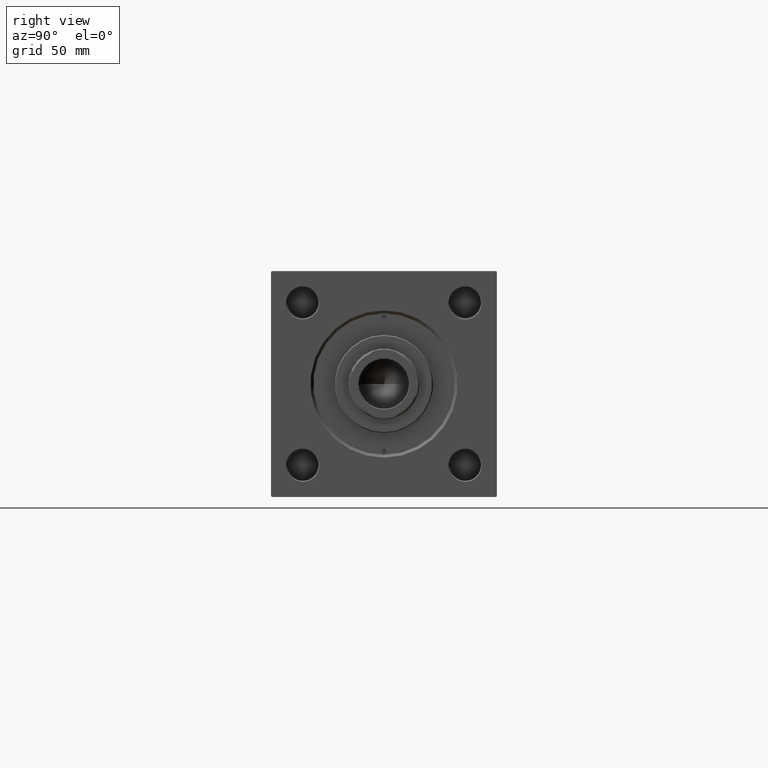
[diagram: clean part render]
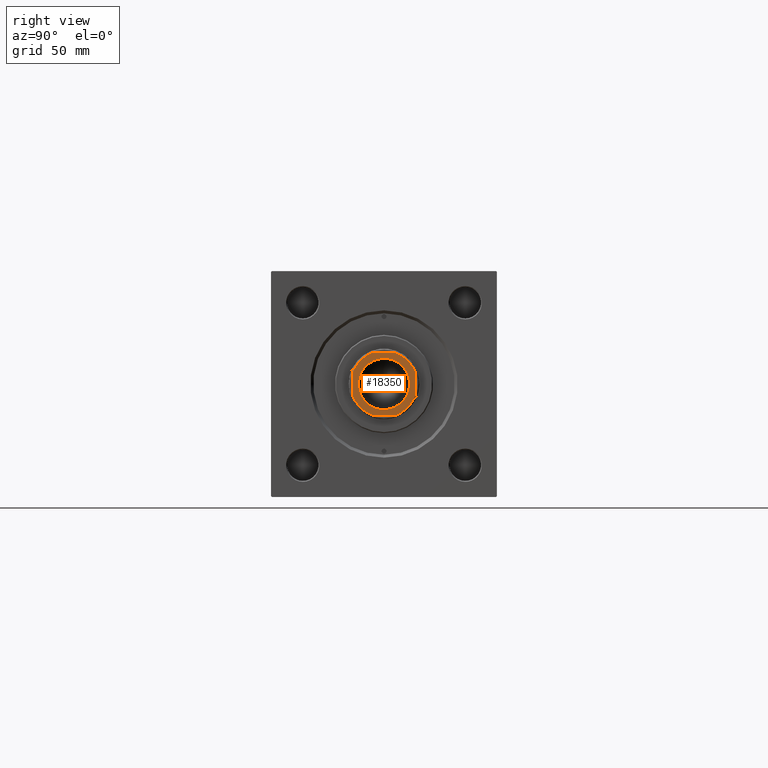
[diagram: same view with one face highlighted and labeled with its STEP entity id]
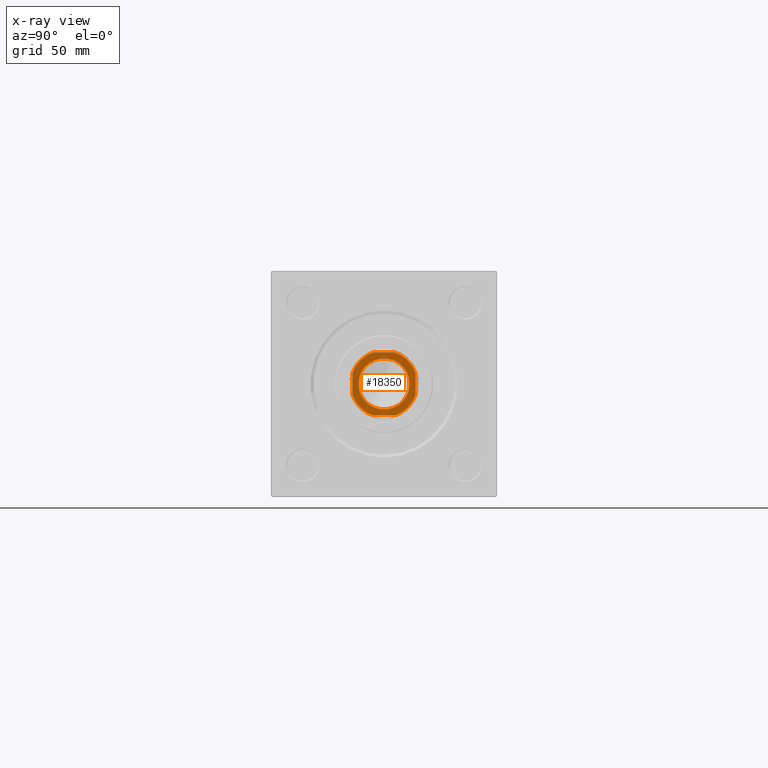
[diagram: x-ray of the same camera — body ghosted, the highlighted face saturated]
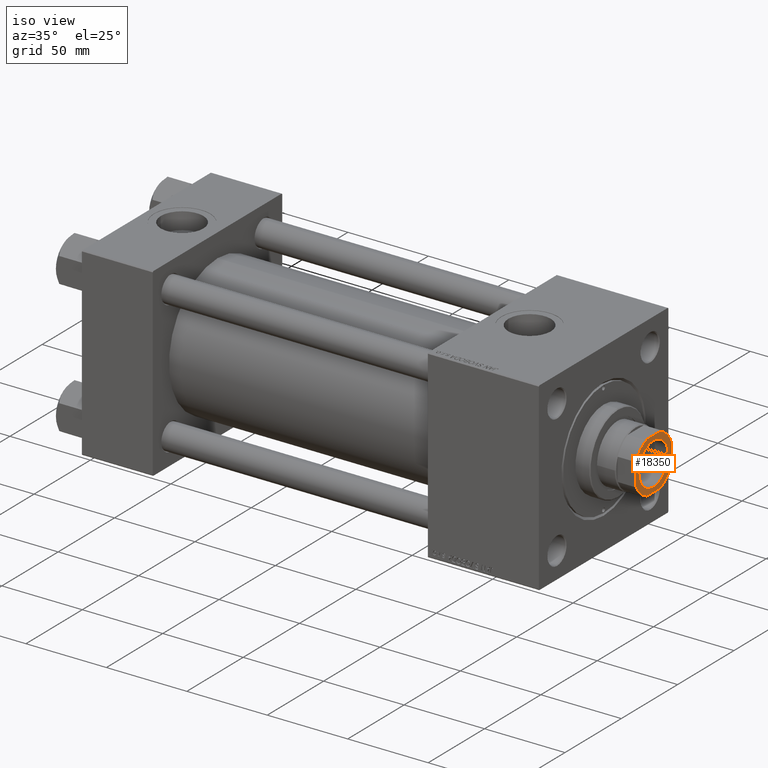
[diagram: same view with one face highlighted and labeled with its STEP entity id]
A machine part, right view. The second image highlights one B-rep face of the part: STEP entity #18350.
The next image is the same camera in x-ray: the body ghosted, the highlighted face saturated — about 0% of this face is hidden behind the body in this view.
A second angle (iso view) of the same face is appended — the face is thin or edge-on in the first view.
In plain terms, the highlighted planar face has unit normal (1, 0, 0).
Its self-contained STEP definition (entity closure, byte-faithful):
#176 = CIRCLE ( 'NONE', #38732, 17.00000000000001776 ) ;
#1398 = CARTESIAN_POINT ( 'NONE',  ( -5.744562646538206252, -15.99999999999999645, 271.0000000000000000 ) ) ;
#2155 = CARTESIAN_POINT ( 'NONE',  ( 5.744562646538206252, -15.99999999999999645, 271.0000000000000000 ) ) ;
#2888 = AXIS2_PLACEMENT_3D ( 'NONE', #47066, #4143, #43216 ) ;
#2972 = CIRCLE ( 'NONE', #30040, 17.00000000000005684 ) ;
#3873 = CARTESIAN_POINT ( 'NONE',  ( -16.00000000000000000, 16.00000000000000000, 271.0000000000000000 ) ) ;
#4143 = DIRECTION ( 'NONE',  ( 0.000000000000000000, -0.000000000000000000, -1.000000000000000000 ) ) ;
#5320 = VERTEX_POINT ( 'NONE', #48011 ) ;
#5378 = DIRECTION ( 'NONE',  ( 1.000000000000000000, 0.000000000000000000, 0.000000000000000000 ) ) ;
#5950 = DIRECTION ( 'NONE',  ( -0.000000000000000000, 0.000000000000000000, 1.000000000000000000 ) ) ;
#5990 = EDGE_LOOP ( 'NONE', ( #8282, #15977, #37212, #45484, #50147, #12613, #46513, #47067 ) ) ;
#6260 = AXIS2_PLACEMENT_3D ( 'NONE', #21850, #26720, #13191 ) ;
#6431 = CARTESIAN_POINT ( 'NONE',  ( 16.00000000000000000, 5.744562646538086348, 271.0000000000000000 ) ) ;
#6494 = CIRCLE ( 'NONE', #7300, 17.00000000000005684 ) ;
#7300 = AXIS2_PLACEMENT_3D ( 'NONE', #33076, #40555, #21011 ) ;
#8282 = ORIENTED_EDGE ( 'NONE', *, *, #47948, .T. ) ;
#8856 = ORIENTED_EDGE ( 'NONE', *, *, #24100, .T. ) ;
#9589 = VERTEX_POINT ( 'NONE', #45581 ) ;
#10588 = EDGE_CURVE ( 'NONE', #44794, #36478, #44526, .T. ) ;
#10595 = EDGE_CURVE ( 'NONE', #20973, #35851, #43765, .T. ) ;
#10633 = LINE ( 'NONE', #41749, #41355 ) ;
#11522 = EDGE_CURVE ( 'NONE', #9589, #31728, #25844, .T. ) ;
#12613 = ORIENTED_EDGE ( 'NONE', *, *, #32802, .T. ) ;
#13111 = VERTEX_POINT ( 'NONE', #36753 ) ;
#13191 = DIRECTION ( 'NONE',  ( 1.000000000000000000, 0.000000000000000000, 0.000000000000000000 ) ) ;
#14885 = PLANE ( 'NONE',  #6260 ) ;
#15977 = ORIENTED_EDGE ( 'NONE', *, *, #43438, .T. ) ;
#16077 = AXIS2_PLACEMENT_3D ( 'NONE', #49338, #31835, #19257 ) ;
#16168 = DIRECTION ( 'NONE',  ( 0.000000000000000000, -0.000000000000000000, -1.000000000000000000 ) ) ;
#18350 = ADVANCED_FACE ( 'NONE', ( #36587, #41405 ), #14885, .T. ) ;
#18359 = VERTEX_POINT ( 'NONE', #6431 ) ;
#18417 = EDGE_CURVE ( 'NONE', #35851, #47768, #35790, .T. ) ;
#19243 = VECTOR ( 'NONE', #20377, 1000.000000000000000 ) ;
#19257 = DIRECTION ( 'NONE',  ( 1.000000000000000000, 0.000000000000000000, 0.000000000000000000 ) ) ;
#20377 = DIRECTION ( 'NONE',  ( 0.000000000000000000, -1.000000000000000000, 0.000000000000000000 ) ) ;
#20973 = VERTEX_POINT ( 'NONE', #1398 ) ;
#21011 = DIRECTION ( 'NONE',  ( 1.000000000000000000, 0.000000000000000000, 0.000000000000000000 ) ) ;
#21623 = DIRECTION ( 'NONE',  ( 1.000000000000000000, 0.000000000000000000, 0.000000000000000000 ) ) ;
#21850 = CARTESIAN_POINT ( 'NONE',  ( 0.000000000000000000, 0.000000000000000000, 271.0000000000000000 ) ) ;
#22540 = VECTOR ( 'NONE', #40681, 1000.000000000000000 ) ;
#23406 = DIRECTION ( 'NONE',  ( -1.000000000000000000, -0.000000000000000000, -0.000000000000000000 ) ) ;
#23451 = CIRCLE ( 'NONE', #26745, 13.05000000000000604 ) ;
#24100 = EDGE_CURVE ( 'NONE', #31728, #9589, #23451, .T. ) ;
#25262 = EDGE_CURVE ( 'NONE', #5320, #44794, #2972, .T. ) ;
#25844 = CIRCLE ( 'NONE', #2888, 13.05000000000000604 ) ;
#25850 = ORIENTED_EDGE ( 'NONE', *, *, #11522, .T. ) ;
#26720 = DIRECTION ( 'NONE',  ( -0.000000000000000000, 0.000000000000000000, 1.000000000000000000 ) ) ;
#26745 = AXIS2_PLACEMENT_3D ( 'NONE', #40095, #16168, #5378 ) ;
#27365 = CARTESIAN_POINT ( 'NONE',  ( -16.00000000000000000, -5.744562646538198258, 271.0000000000000000 ) ) ;
#28340 = CARTESIAN_POINT ( 'NONE',  ( -16.00000000000000000, 16.00000000000000000, 271.0000000000000000 ) ) ;
#30040 = AXIS2_PLACEMENT_3D ( 'NONE', #33442, #5950, #21623 ) ;
#30162 = DIRECTION ( 'NONE',  ( -1.084202172485504434E-16, 1.000000000000000000, -0.000000000000000000 ) ) ;
#31728 = VERTEX_POINT ( 'NONE', #48046 ) ;
#31835 = DIRECTION ( 'NONE',  ( -0.000000000000000000, 0.000000000000000000, 1.000000000000000000 ) ) ;
#32802 = EDGE_CURVE ( 'NONE', #36478, #20973, #6494, .T. ) ;
#33014 = DIRECTION ( 'NONE',  ( 1.000000000000000000, 0.000000000000000000, 0.000000000000000000 ) ) ;
#33073 = VECTOR ( 'NONE', #23406, 1000.000000000000000 ) ;
#33076 = CARTESIAN_POINT ( 'NONE',  ( 0.000000000000000000, 0.000000000000000000, 271.0000000000000000 ) ) ;
#33442 = CARTESIAN_POINT ( 'NONE',  ( 0.000000000000000000, 0.000000000000000000, 271.0000000000000000 ) ) ;
#35233 = LINE ( 'NONE', #3873, #33073 ) ;
#35790 = CIRCLE ( 'NONE', #16077, 17.00000000000005684 ) ;
#35851 = VERTEX_POINT ( 'NONE', #2155 ) ;
#36478 = VERTEX_POINT ( 'NONE', #27365 ) ;
#36587 = FACE_BOUND ( 'NONE', #36641, .T. ) ;
#36641 = EDGE_LOOP ( 'NONE', ( #25850, #8856 ) ) ;
#36753 = CARTESIAN_POINT ( 'NONE',  ( 5.744562646538085460, 16.00000000000000000, 271.0000000000000000 ) ) ;
#37212 = ORIENTED_EDGE ( 'NONE', *, *, #45739, .T. ) ;
#38732 = AXIS2_PLACEMENT_3D ( 'NONE', #40752, #45336, #33014 ) ;
#40095 = CARTESIAN_POINT ( 'NONE',  ( 0.000000000000000000, 0.000000000000000000, 271.0000000000000000 ) ) ;
#40555 = DIRECTION ( 'NONE',  ( -0.000000000000000000, 0.000000000000000000, 1.000000000000000000 ) ) ;
#40681 = DIRECTION ( 'NONE',  ( 1.000000000000000000, 0.000000000000000000, 0.000000000000000000 ) ) ;
#40752 = CARTESIAN_POINT ( 'NONE',  ( 0.000000000000000000, 0.000000000000000000, 271.0000000000000000 ) ) ;
#41355 = VECTOR ( 'NONE', #30162, 1000.000000000000000 ) ;
#41405 = FACE_OUTER_BOUND ( 'NONE', #5990, .T. ) ;
#41749 = CARTESIAN_POINT ( 'NONE',  ( 15.99999999999999645, 16.00000000000000000, 271.0000000000000000 ) ) ;
#43216 = DIRECTION ( 'NONE',  ( 1.000000000000000000, 0.000000000000000000, 0.000000000000000000 ) ) ;
#43438 = EDGE_CURVE ( 'NONE', #18359, #13111, #176, .T. ) ;
#43517 = CARTESIAN_POINT ( 'NONE',  ( -16.00000000000000000, -15.99999999999999645, 271.0000000000000000 ) ) ;
#43765 = LINE ( 'NONE', #43517, #22540 ) ;
#44289 = CARTESIAN_POINT ( 'NONE',  ( -16.00000000000000000, 5.744562646538198258, 271.0000000000000000 ) ) ;
#44526 = LINE ( 'NONE', #28340, #19243 ) ;
#44794 = VERTEX_POINT ( 'NONE', #44289 ) ;
#45336 = DIRECTION ( 'NONE',  ( -0.000000000000000000, 0.000000000000000000, 1.000000000000000000 ) ) ;
#45484 = ORIENTED_EDGE ( 'NONE', *, *, #25262, .T. ) ;
#45581 = CARTESIAN_POINT ( 'NONE',  ( 13.05000000000000604, 0.000000000000000000, 271.0000000000000000 ) ) ;
#45739 = EDGE_CURVE ( 'NONE', #13111, #5320, #35233, .T. ) ;
#46513 = ORIENTED_EDGE ( 'NONE', *, *, #10595, .T. ) ;
#47066 = CARTESIAN_POINT ( 'NONE',  ( 0.000000000000000000, 0.000000000000000000, 271.0000000000000000 ) ) ;
#47067 = ORIENTED_EDGE ( 'NONE', *, *, #18417, .T. ) ;
#47768 = VERTEX_POINT ( 'NONE', #50328 ) ;
#47948 = EDGE_CURVE ( 'NONE', #47768, #18359, #10633, .T. ) ;
#48011 = CARTESIAN_POINT ( 'NONE',  ( -5.744562646538198258, 16.00000000000000000, 271.0000000000000000 ) ) ;
#48046 = CARTESIAN_POINT ( 'NONE',  ( -13.05000000000000604, 1.598164072887296760E-15, 271.0000000000000000 ) ) ;
#49338 = CARTESIAN_POINT ( 'NONE',  ( 0.000000000000000000, 0.000000000000000000, 271.0000000000000000 ) ) ;
#50147 = ORIENTED_EDGE ( 'NONE', *, *, #10588, .T. ) ;
#50328 = CARTESIAN_POINT ( 'NONE',  ( 16.00000000000000000, -5.744562646538200035, 271.0000000000000000 ) ) ;